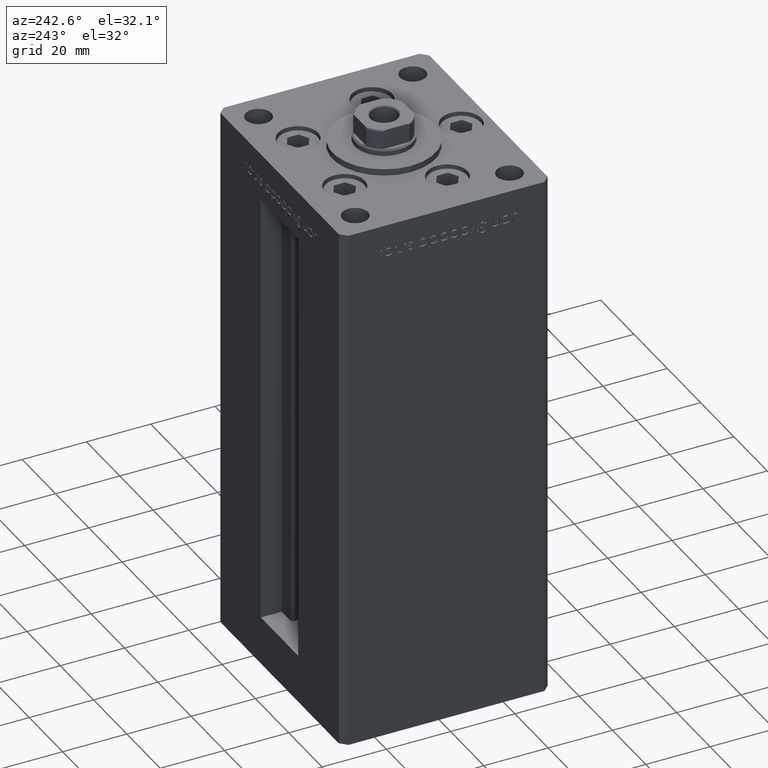
[diagram: clean part render]
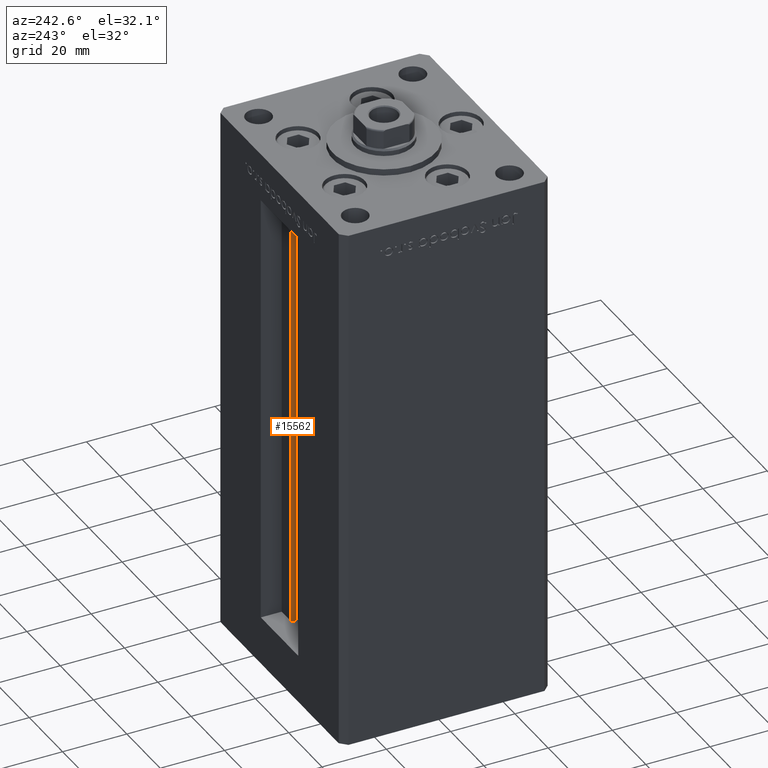
[diagram: same view with one face highlighted and labeled with its STEP entity id]
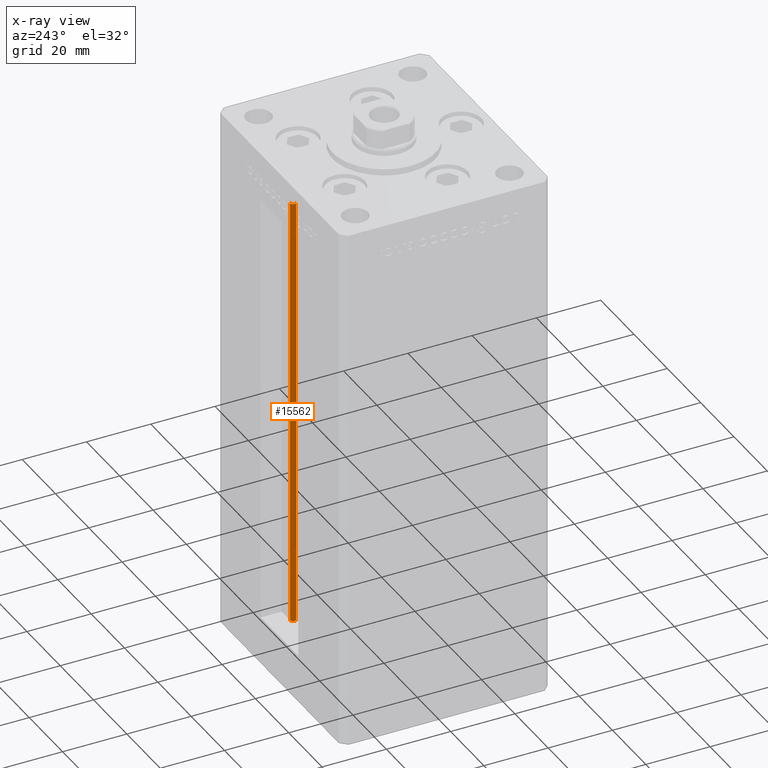
[diagram: x-ray of the same camera — body ghosted, the highlighted face saturated]
A machine part, auxiliary view. The second image highlights one B-rep face of the part: STEP entity #15562.
The next image is the same camera in x-ray: the body ghosted, the highlighted face saturated — about 0% of this face is hidden behind the body in this view.
In plain terms, the highlighted cylindrical surface (edge-blend (fillet) strip) has radius 0.9333 mm, axis along (0, 0, 1).
Its self-contained STEP definition (entity closure, byte-faithful):
#1209 = CARTESIAN_POINT ( 'NONE',  ( 6.183333333334001480, 25.06666666666599141, 0.000000000000000000 ) ) ;
#1934 = ORIENTED_EDGE ( 'NONE', *, *, #29751, .F. ) ;
#2416 = DIRECTION ( 'NONE',  ( 0.000000000000000000, 0.000000000000000000, -1.000000000000000000 ) ) ;
#4024 = ORIENTED_EDGE ( 'NONE', *, *, #22435, .T. ) ;
#4970 = DIRECTION ( 'NONE',  ( -0.000000000000000000, -0.000000000000000000, 1.000000000000000000 ) ) ;
#5139 = DIRECTION ( 'NONE',  ( -0.000000000000000000, -0.000000000000000000, -1.000000000000000000 ) ) ;
#5205 = CIRCLE ( 'NONE', #9358, 0.9333333333340008142 ) ;
#7127 = CARTESIAN_POINT ( 'NONE',  ( 6.183333333334001480, 25.06666666666599141, 136.0000000000000000 ) ) ;
#8030 = VECTOR ( 'NONE', #35228, 1000.000000000000000 ) ;
#8275 = CARTESIAN_POINT ( 'NONE',  ( 6.183333333334001480, 25.99999999999999289, 0.000000000000000000 ) ) ;
#9105 = ORIENTED_EDGE ( 'NONE', *, *, #32270, .F. ) ;
#9358 = AXIS2_PLACEMENT_3D ( 'NONE', #1209, #5139, #33690 ) ;
#10317 = ORIENTED_EDGE ( 'NONE', *, *, #50211, .T. ) ;
#10708 = VERTEX_POINT ( 'NONE', #18925 ) ;
#14337 = AXIS2_PLACEMENT_3D ( 'NONE', #7127, #2416, #50616 ) ;
#15179 = CARTESIAN_POINT ( 'NONE',  ( 5.375042956467948052, 24.59999999999899245, 136.0000000000000000 ) ) ;
#15562 = ADVANCED_FACE ( 'NONE', ( #36350 ), #48415, .T. ) ;
#16013 = CIRCLE ( 'NONE', #14337, 0.9333333333340008142 ) ;
#16435 = CARTESIAN_POINT ( 'NONE',  ( 6.183333333334001480, 25.06666666666599141, 0.000000000000000000 ) ) ;
#16492 = EDGE_LOOP ( 'NONE', ( #9105, #1934, #10317, #4024 ) ) ;
#16706 = DIRECTION ( 'NONE',  ( -0.000000000000000000, -0.000000000000000000, 1.000000000000000000 ) ) ;
#16741 = VERTEX_POINT ( 'NONE', #8275 ) ;
#17201 = VERTEX_POINT ( 'NONE', #28855 ) ;
#17266 = LINE ( 'NONE', #40868, #24510 ) ;
#18925 = CARTESIAN_POINT ( 'NONE',  ( 6.183333333334001480, 25.99999999999999289, 136.0000000000000000 ) ) ;
#22435 = EDGE_CURVE ( 'NONE', #49929, #10708, #16013, .T. ) ;
#23350 = AXIS2_PLACEMENT_3D ( 'NONE', #16435, #16706, #32696 ) ;
#24510 = VECTOR ( 'NONE', #4970, 1000.000000000000000 ) ;
#27124 = CARTESIAN_POINT ( 'NONE',  ( 5.375042956467947164, 24.59999999999899245, 0.000000000000000000 ) ) ;
#27636 = LINE ( 'NONE', #27124, #8030 ) ;
#28855 = CARTESIAN_POINT ( 'NONE',  ( 5.375042956467947164, 24.59999999999899245, 0.000000000000000000 ) ) ;
#29751 = EDGE_CURVE ( 'NONE', #17201, #16741, #5205, .T. ) ;
#32270 = EDGE_CURVE ( 'NONE', #16741, #10708, #17266, .T. ) ;
#32696 = DIRECTION ( 'NONE',  ( 1.000000000000000000, 0.000000000000000000, 0.000000000000000000 ) ) ;
#33690 = DIRECTION ( 'NONE',  ( 1.000000000000000000, 0.000000000000000000, 0.000000000000000000 ) ) ;
#35228 = DIRECTION ( 'NONE',  ( -0.000000000000000000, -0.000000000000000000, 1.000000000000000000 ) ) ;
#36350 = FACE_OUTER_BOUND ( 'NONE', #16492, .T. ) ;
#40868 = CARTESIAN_POINT ( 'NONE',  ( 6.183333333334001480, 25.99999999999999289, 0.000000000000000000 ) ) ;
#48415 = CYLINDRICAL_SURFACE ( 'NONE', #23350, 0.9333333333340008142 ) ;
#49929 = VERTEX_POINT ( 'NONE', #15179 ) ;
#50211 = EDGE_CURVE ( 'NONE', #17201, #49929, #27636, .T. ) ;
#50616 = DIRECTION ( 'NONE',  ( 1.000000000000000000, 0.000000000000000000, 0.000000000000000000 ) ) ;